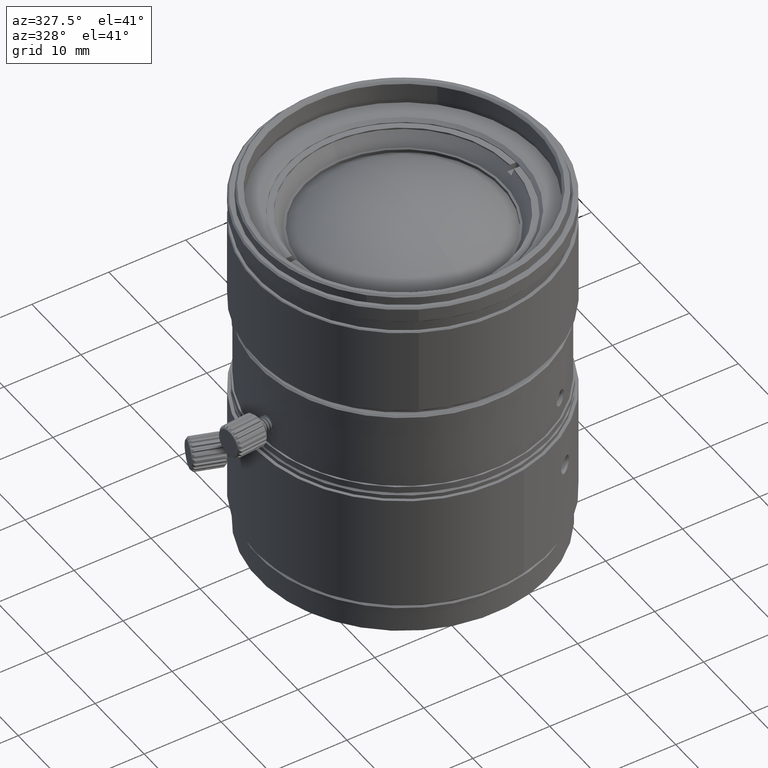
[diagram: clean part render]
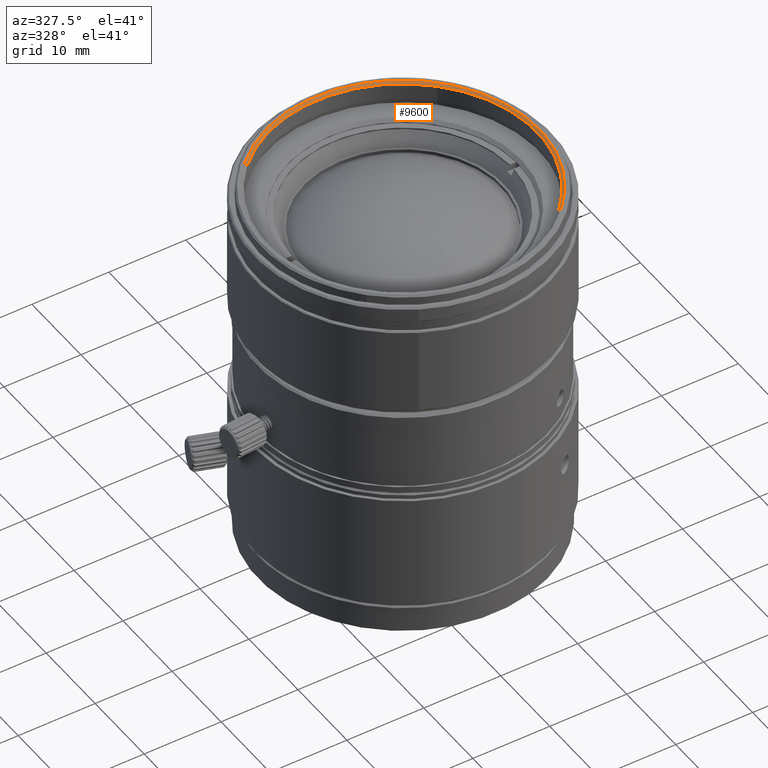
[diagram: same view with one face highlighted and labeled with its STEP entity id]
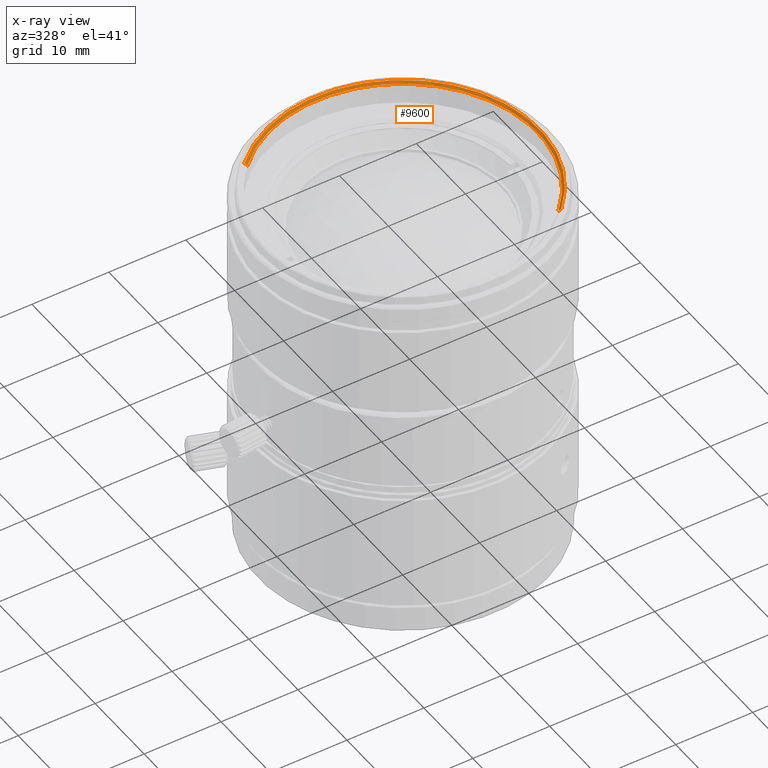
[diagram: x-ray of the same camera — body ghosted, the highlighted face saturated]
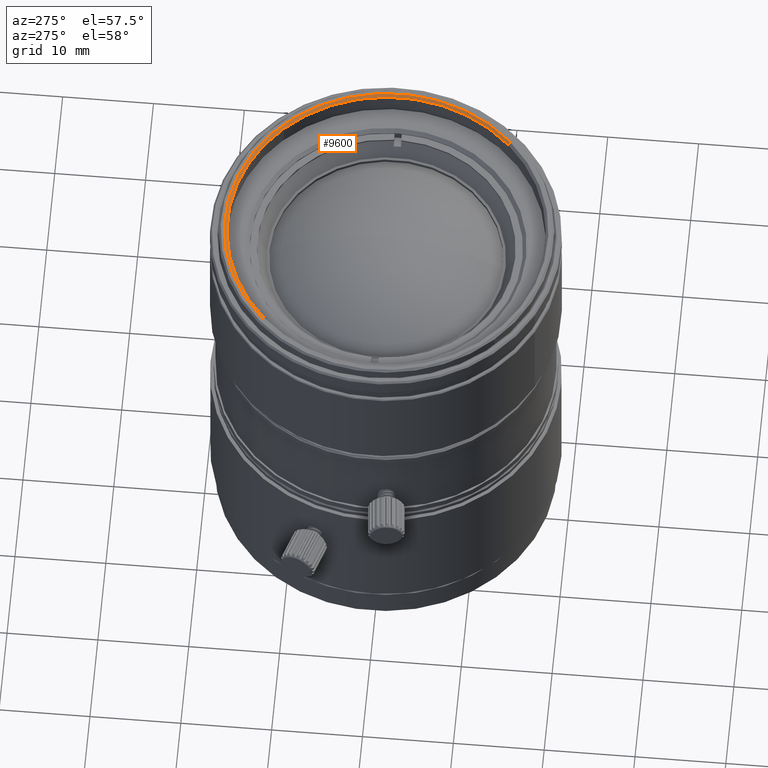
[diagram: same view with one face highlighted and labeled with its STEP entity id]
A machine part, auxiliary view. The second image highlights one B-rep face of the part: STEP entity #9600.
The next image is the same camera in x-ray: the body ghosted, the highlighted face saturated — about 0% of this face is hidden behind the body in this view.
A second angle (auxiliary view) of the same face is appended — the face is thin or edge-on in the first view.
In plain terms, the highlighted conical surface has half-angle 45 deg.
Its self-contained STEP definition (entity closure, byte-faithful):
#1556 = CARTESIAN_POINT ( 'NONE',  ( -12.57235856930644324, 12.57235856930644680, 46.80999999999999517 ) ) ;
#1695 = ORIENTED_EDGE ( 'NONE', *, *, #18536, .F. ) ;
#2170 = LINE ( 'NONE', #26725, #32742 ) ;
#5281 = CARTESIAN_POINT ( 'NONE',  ( 0.000000000000000000, 0.000000000000000000, 46.51000000000000512 ) ) ;
#5915 = AXIS2_PLACEMENT_3D ( 'NONE', #27263, #6988, #37624 ) ;
#6988 = DIRECTION ( 'NONE',  ( 0.000000000000000000, 0.000000000000000000, 1.000000000000000000 ) ) ;
#7523 = CARTESIAN_POINT ( 'NONE',  ( -12.36022653533123794, 12.36022653533124149, 46.51000000000000512 ) ) ;
#9600 = ADVANCED_FACE ( 'NONE', ( #33589 ), #29254, .F. ) ;
#13252 = DIRECTION ( 'NONE',  ( 0.4999999995512762752, -0.4999999995512762752, 0.7071067818211387301 ) ) ;
#14249 = VECTOR ( 'NONE', #13252, 1000.000000000000000 ) ;
#14747 = AXIS2_PLACEMENT_3D ( 'NONE', #5281, #32553, #25564 ) ;
#16183 = VERTEX_POINT ( 'NONE', #38354 ) ;
#16408 = LINE ( 'NONE', #40297, #14249 ) ;
#18536 = EDGE_CURVE ( 'NONE', #16183, #21215, #24608, .T. ) ;
#21009 = EDGE_CURVE ( 'NONE', #41731, #16183, #39908, .T. ) ;
#21215 = VERTEX_POINT ( 'NONE', #7523 ) ;
#22079 = AXIS2_PLACEMENT_3D ( 'NONE', #33365, #43955, #26371 ) ;
#22307 = EDGE_CURVE ( 'NONE', #21215, #28830, #2170, .T. ) ;
#24598 = CARTESIAN_POINT ( 'NONE',  ( 0.000000000000000000, 0.000000000000000000, 46.80999999999999517 ) ) ;
#24608 = CIRCLE ( 'NONE', #5915, 17.48000000000001108 ) ;
#25564 = DIRECTION ( 'NONE',  ( 0.7071067811865475727, -0.7071067811865475727, 0.000000000000000000 ) ) ;
#26371 = DIRECTION ( 'NONE',  ( 0.7071067811865475727, -0.7071067811865475727, 0.000000000000000000 ) ) ;
#26725 = CARTESIAN_POINT ( 'NONE',  ( -12.46629255231884059, 12.46629255231884414, 46.65999999999999659 ) ) ;
#27263 = CARTESIAN_POINT ( 'NONE',  ( 0.000000000000000000, 0.000000000000000000, 46.51000000000000512 ) ) ;
#28830 = VERTEX_POINT ( 'NONE', #1556 ) ;
#29153 = CIRCLE ( 'NONE', #39211, 17.78000000000001180 ) ;
#29254 = CONICAL_SURFACE ( 'NONE', #22079, 17.63000000000001322, 0.7853981625000003852 ) ;
#30045 = VERTEX_POINT ( 'NONE', #33896 ) ;
#31589 = ORIENTED_EDGE ( 'NONE', *, *, #42501, .T. ) ;
#32038 = DIRECTION ( 'NONE',  ( 0.7071067811865475727, -0.7071067811865475727, 0.000000000000000000 ) ) ;
#32368 = EDGE_CURVE ( 'NONE', #41731, #30045, #16408, .T. ) ;
#32553 = DIRECTION ( 'NONE',  ( 0.000000000000000000, 0.000000000000000000, 1.000000000000000000 ) ) ;
#32742 = VECTOR ( 'NONE', #43189, 1000.000000000000227 ) ;
#33365 = CARTESIAN_POINT ( 'NONE',  ( 0.000000000000000000, 0.000000000000000000, 46.65999999999999659 ) ) ;
#33589 = FACE_OUTER_BOUND ( 'NONE', #38009, .T. ) ;
#33896 = CARTESIAN_POINT ( 'NONE',  ( 12.57235856930644502, -12.57235856930644502, 46.80999999999999517 ) ) ;
#34979 = DIRECTION ( 'NONE',  ( 0.000000000000000000, 0.000000000000000000, 1.000000000000000000 ) ) ;
#36780 = ORIENTED_EDGE ( 'NONE', *, *, #32368, .T. ) ;
#37624 = DIRECTION ( 'NONE',  ( 0.7071067811865475727, -0.7071067811865475727, 0.000000000000000000 ) ) ;
#38009 = EDGE_LOOP ( 'NONE', ( #40122, #1695, #44212, #36780, #31589 ) ) ;
#38354 = CARTESIAN_POINT ( 'NONE',  ( 12.36022653514085334, 12.36022653514084979, 46.51000000000000512 ) ) ;
#39211 = AXIS2_PLACEMENT_3D ( 'NONE', #24598, #34979, #32038 ) ;
#39908 = CIRCLE ( 'NONE', #14747, 17.48000000000001108 ) ;
#40122 = ORIENTED_EDGE ( 'NONE', *, *, #22307, .F. ) ;
#40297 = CARTESIAN_POINT ( 'NONE',  ( 12.46629255231884237, -12.46629255231884237, 46.65999999999999659 ) ) ;
#41731 = VERTEX_POINT ( 'NONE', #43212 ) ;
#42501 = EDGE_CURVE ( 'NONE', #30045, #28830, #29153, .T. ) ;
#43189 = DIRECTION ( 'NONE',  ( -0.4999999995512760531, 0.4999999995512762196, 0.7071067818211388412 ) ) ;
#43212 = CARTESIAN_POINT ( 'NONE',  ( 12.36022653533123972, -12.36022653533123972, 46.51000000000000512 ) ) ;
#43955 = DIRECTION ( 'NONE',  ( 5.303688793299599570E-17, -5.303688793299599570E-17, 1.000000000000000000 ) ) ;
#44212 = ORIENTED_EDGE ( 'NONE', *, *, #21009, .F. ) ;